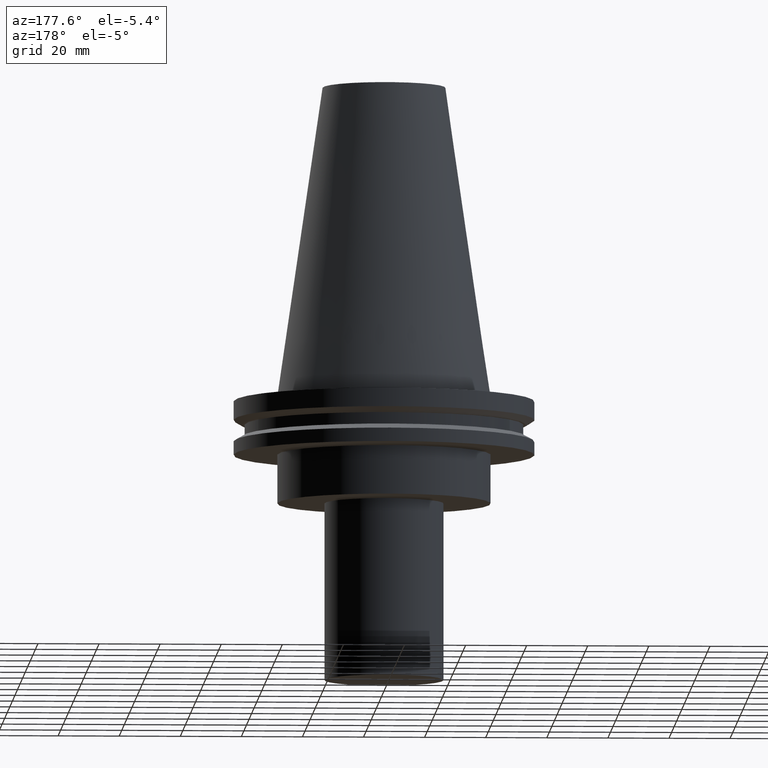
[diagram: clean part render]
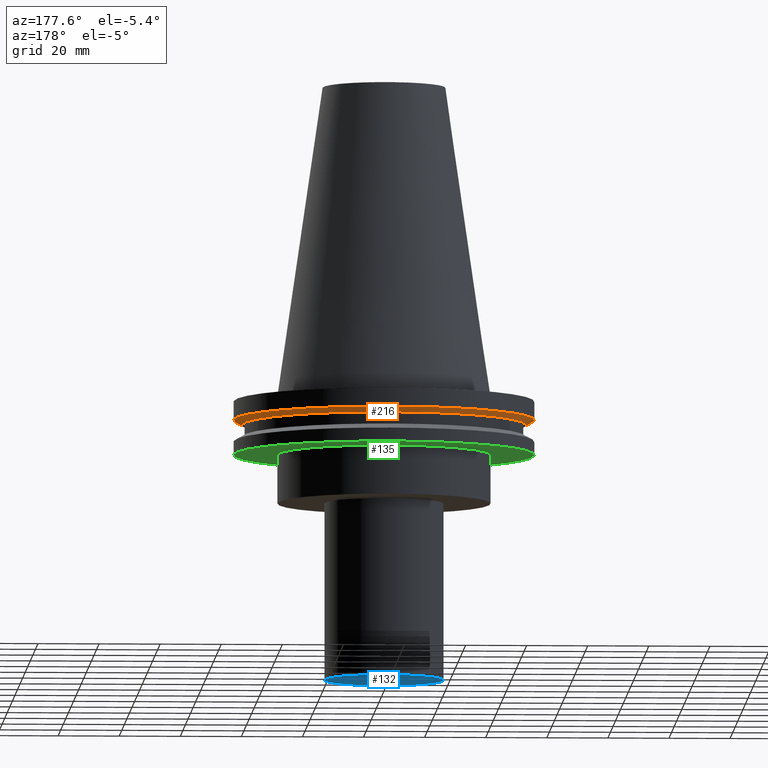
[diagram: same view with three faces highlighted in distinct colors, each labeled with its STEP entity id]
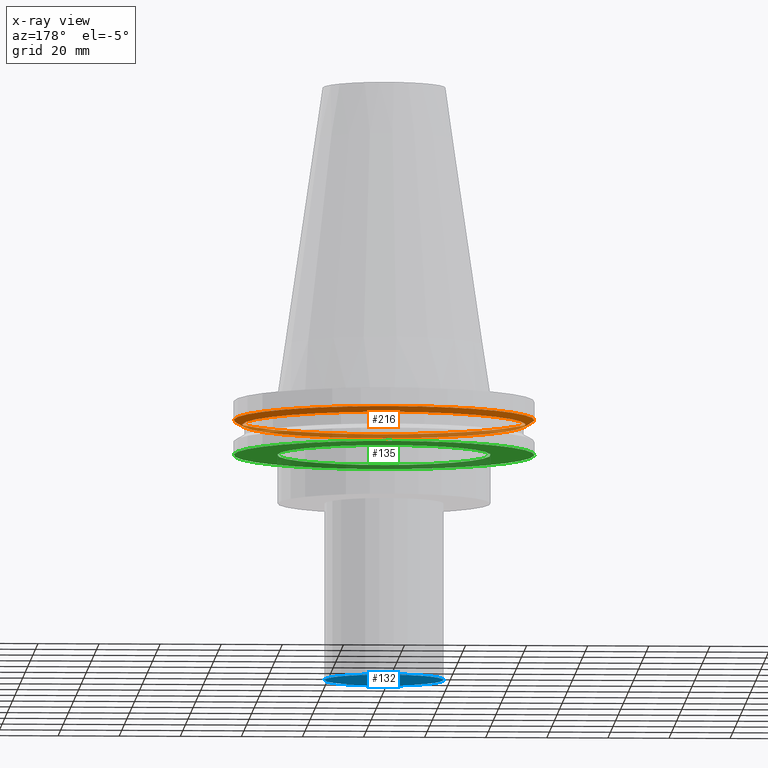
[diagram: x-ray of the same camera — body ghosted, the three highlighted faces saturated]
A machine part, auxiliary view with three faces highlighted in distinct colors.
The next image is the same camera in x-ray (body ghosted, the three faces saturated) — at least one of them is partly hidden behind the body in this view.
Their STEP definitions:

[orange] entity #216 — the highlighted conical surface has half-angle 60 deg.
#20 = AXIS2_PLACEMENT_3D ( 'NONE', #108, #109, #76 ) ;
#76 = DIRECTION ( 'NONE',  ( 1.000000000000000000, 0.000000000000000000, 0.000000000000000000 ) ) ;
#108 = CARTESIAN_POINT ( 'NONE',  ( 0.000000000000000000, 0.000000000000000000, -9.204999999999991189 ) ) ;
#109 = DIRECTION ( 'NONE',  ( -0.000000000000000000, -0.000000000000000000, 1.000000000000000000 ) ) ;
#115 = ORIENTED_EDGE ( 'NONE', *, *, #194, .F. ) ;
#119 = VERTEX_POINT ( 'NONE', #302 ) ;
#133 = DIRECTION ( 'NONE',  ( -0.000000000000000000, -0.000000000000000000, 1.000000000000000000 ) ) ;
#138 = FACE_BOUND ( 'NONE', #314, .T. ) ;
#167 = CARTESIAN_POINT ( 'NONE',  ( 0.000000000000000000, 0.000000000000000000, -7.602389855251287187 ) ) ;
#168 = CARTESIAN_POINT ( 'NONE',  ( 0.000000000000000000, 0.000000000000000000, -9.204999999999991189 ) ) ;
#169 = AXIS2_PLACEMENT_3D ( 'NONE', #167, #321, #200 ) ;
#171 = CIRCLE ( 'NONE', #169, 49.21500000000000341 ) ;
#177 = CARTESIAN_POINT ( 'NONE',  ( 49.21500000000000341, 0.000000000000000000, -7.602389855251287187 ) ) ;
#181 = ORIENTED_EDGE ( 'NONE', *, *, #287, .T. ) ;
#194 = EDGE_CURVE ( 'NONE', #294, #294, #171, .T. ) ;
#200 = DIRECTION ( 'NONE',  ( 1.000000000000000000, 0.000000000000000000, 0.000000000000000000 ) ) ;
#216 = ADVANCED_FACE ( 'NONE', ( #230, #138 ), #225, .T. ) ;
#225 = CONICAL_SURFACE ( 'NONE', #260, 46.43919780457007818, 1.047197551196575205 ) ;
#226 = DIRECTION ( 'NONE',  ( 1.000000000000000000, 0.000000000000000000, 0.000000000000000000 ) ) ;
#230 = FACE_OUTER_BOUND ( 'NONE', #334, .T. ) ;
#260 = AXIS2_PLACEMENT_3D ( 'NONE', #168, #133, #226 ) ;
#287 = EDGE_CURVE ( 'NONE', #119, #119, #384, .T. ) ;
#294 = VERTEX_POINT ( 'NONE', #177 ) ;
#302 = CARTESIAN_POINT ( 'NONE',  ( 46.43919780457007818, 0.000000000000000000, -9.204999999999991189 ) ) ;
#314 = EDGE_LOOP ( 'NONE', ( #181 ) ) ;
#321 = DIRECTION ( 'NONE',  ( -0.000000000000000000, -0.000000000000000000, 1.000000000000000000 ) ) ;
#334 = EDGE_LOOP ( 'NONE', ( #115 ) ) ;
#384 = CIRCLE ( 'NONE', #20, 46.43919780457007818 ) ;

[blue] entity #132 — the highlighted planar face has unit normal (0, -0, 1).
#6 = EDGE_LOOP ( 'NONE', ( #150 ) ) ;
#7 = EDGE_CURVE ( 'NONE', #29, #29, #290, .T. ) ;
#29 = VERTEX_POINT ( 'NONE', #394 ) ;
#65 = DIRECTION ( 'NONE',  ( -0.000000000000000000, -0.000000000000000000, 1.000000000000000000 ) ) ;
#70 = DIRECTION ( 'NONE',  ( 1.000000000000000000, 0.000000000000000000, 0.000000000000000000 ) ) ;
#124 = PLANE ( 'NONE',  #323 ) ;
#132 = ADVANCED_FACE ( 'NONE', ( #247 ), #124, .F. ) ;
#150 = ORIENTED_EDGE ( 'NONE', *, *, #7, .F. ) ;
#154 = CARTESIAN_POINT ( 'NONE',  ( 0.000000000000000000, 19.50000000000000000, -93.00000000000000000 ) ) ;
#188 = DIRECTION ( 'NONE',  ( 0.000000000000000000, -0.000000000000000000, 1.000000000000000000 ) ) ;
#214 = DIRECTION ( 'NONE',  ( 1.000000000000000000, 0.000000000000000000, 0.000000000000000000 ) ) ;
#221 = CARTESIAN_POINT ( 'NONE',  ( 0.000000000000000000, 0.000000000000000000, -93.00000000000000000 ) ) ;
#247 = FACE_OUTER_BOUND ( 'NONE', #6, .T. ) ;
#290 = CIRCLE ( 'NONE', #326, 19.50000000000000000 ) ;
#323 = AXIS2_PLACEMENT_3D ( 'NONE', #154, #188, #214 ) ;
#326 = AXIS2_PLACEMENT_3D ( 'NONE', #221, #65, #70 ) ;
#394 = CARTESIAN_POINT ( 'NONE',  ( 19.50000000000000000, 0.000000000000000000, -93.00000000000000000 ) ) ;

[green] entity #135 — the highlighted planar face has unit normal (0, -0, 1).
#13 = DIRECTION ( 'NONE',  ( 1.000000000000000000, 0.000000000000000000, 0.000000000000000000 ) ) ;
#22 = DIRECTION ( 'NONE',  ( 1.000000000000000000, 0.000000000000000000, 0.000000000000000000 ) ) ;
#42 = DIRECTION ( 'NONE',  ( 0.000000000000000000, -0.000000000000000000, 1.000000000000000000 ) ) ;
#68 = FACE_OUTER_BOUND ( 'NONE', #233, .T. ) ;
#121 = CIRCLE ( 'NONE', #348, 49.21499999999998920 ) ;
#125 = FACE_BOUND ( 'NONE', #371, .T. ) ;
#128 = DIRECTION ( 'NONE',  ( 1.000000000000000000, 0.000000000000000000, 0.000000000000000000 ) ) ;
#135 = ADVANCED_FACE ( 'NONE', ( #68, #125 ), #311, .F. ) ;
#149 = EDGE_CURVE ( 'NONE', #235, #235, #307, .T. ) ;
#157 = DIRECTION ( 'NONE',  ( -0.000000000000000000, -0.000000000000000000, 1.000000000000000000 ) ) ;
#189 = EDGE_CURVE ( 'NONE', #300, #300, #121, .T. ) ;
#219 = CARTESIAN_POINT ( 'NONE',  ( 0.000000000000000000, 0.000000000000000000, -19.04999999999999716 ) ) ;
#233 = EDGE_LOOP ( 'NONE', ( #240 ) ) ;
#235 = VERTEX_POINT ( 'NONE', #391 ) ;
#240 = ORIENTED_EDGE ( 'NONE', *, *, #189, .F. ) ;
#252 = CARTESIAN_POINT ( 'NONE',  ( 0.000000000000000000, 0.000000000000000000, -19.04999999999999716 ) ) ;
#261 = DIRECTION ( 'NONE',  ( -0.000000000000000000, -0.000000000000000000, 1.000000000000000000 ) ) ;
#274 = AXIS2_PLACEMENT_3D ( 'NONE', #219, #157, #128 ) ;
#300 = VERTEX_POINT ( 'NONE', #388 ) ;
#307 = CIRCLE ( 'NONE', #274, 34.92499999999999716 ) ;
#311 = PLANE ( 'NONE',  #378 ) ;
#315 = CARTESIAN_POINT ( 'NONE',  ( 0.000000000000000000, 49.21499999999998920, -19.04999999999999716 ) ) ;
#348 = AXIS2_PLACEMENT_3D ( 'NONE', #252, #261, #22 ) ;
#371 = EDGE_LOOP ( 'NONE', ( #393 ) ) ;
#378 = AXIS2_PLACEMENT_3D ( 'NONE', #315, #42, #13 ) ;
#388 = CARTESIAN_POINT ( 'NONE',  ( 49.21499999999998920, 0.000000000000000000, -19.04999999999999716 ) ) ;
#391 = CARTESIAN_POINT ( 'NONE',  ( 34.92499999999999716, 0.000000000000000000, -19.04999999999999716 ) ) ;
#393 = ORIENTED_EDGE ( 'NONE', *, *, #149, .T. ) ;